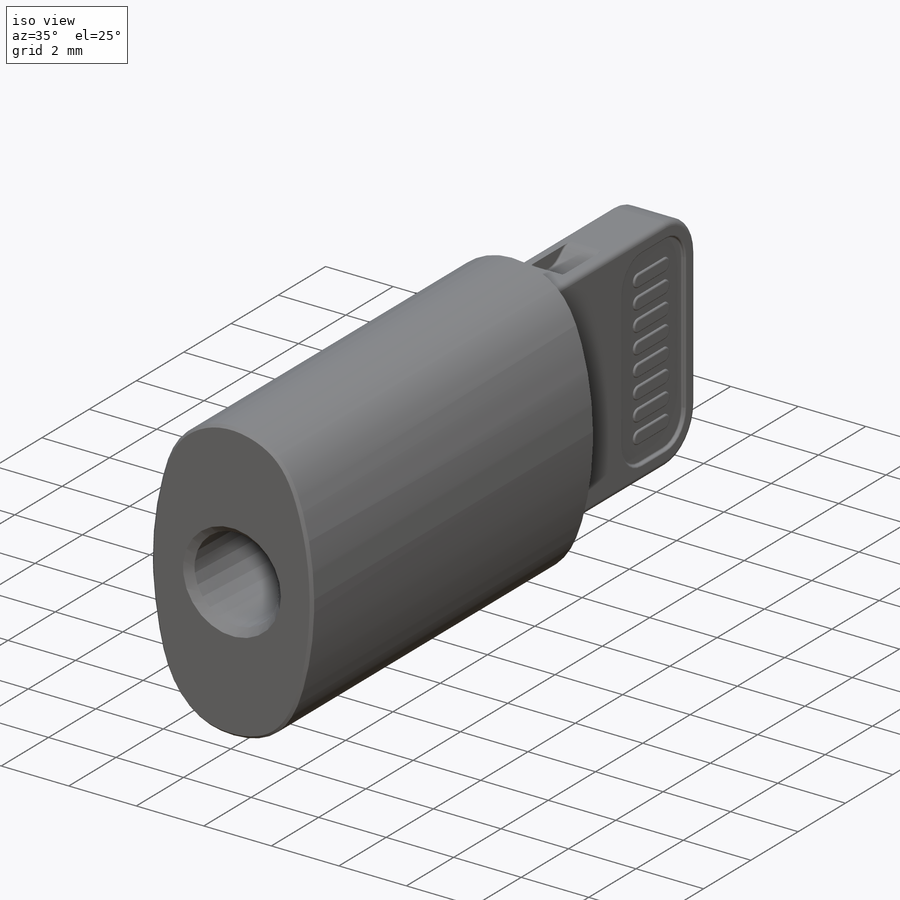
[diagram: iso view]
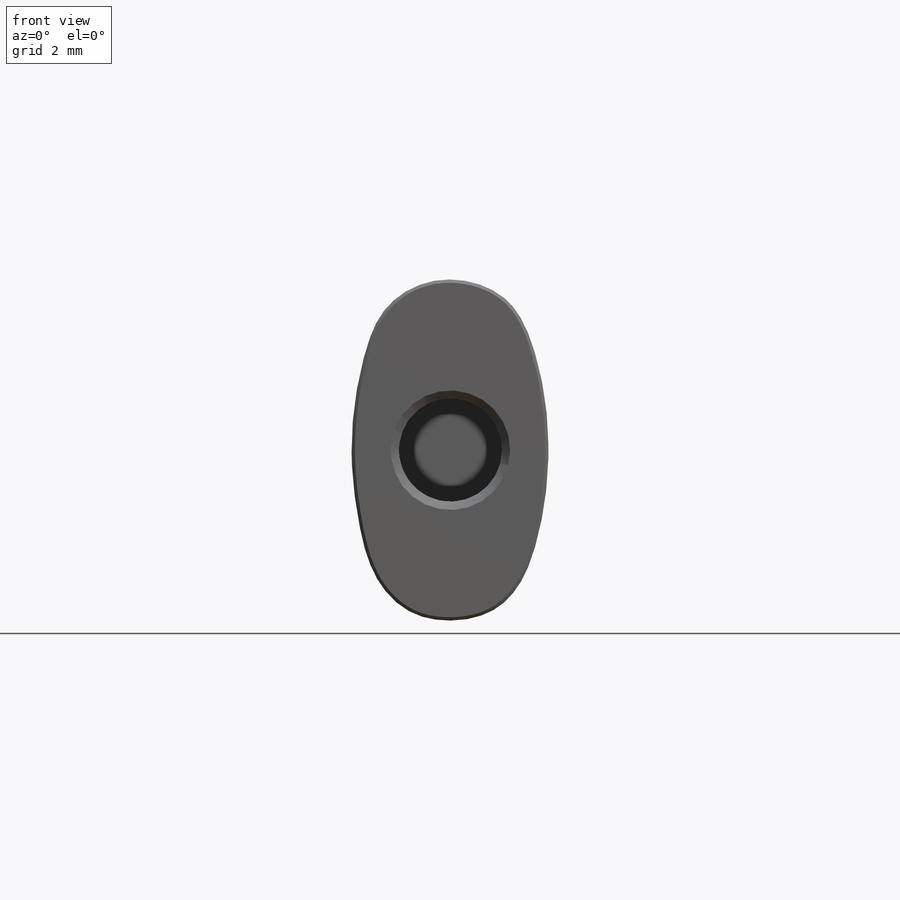
[diagram: front view]
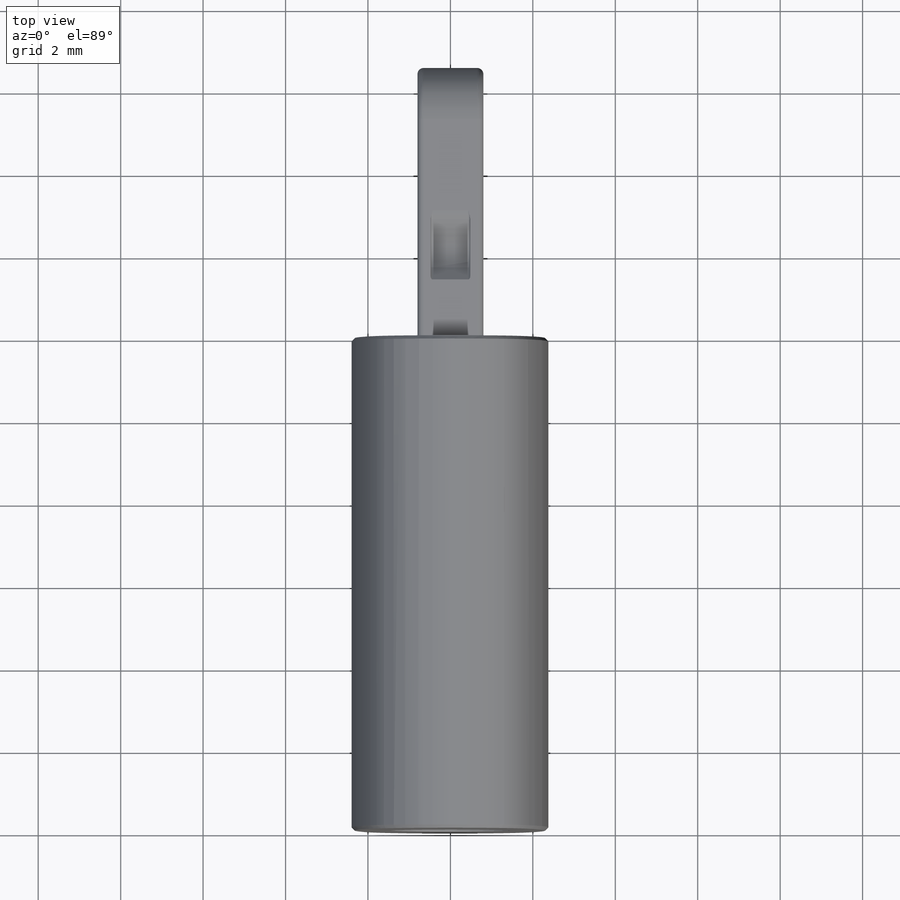
[diagram: top view]
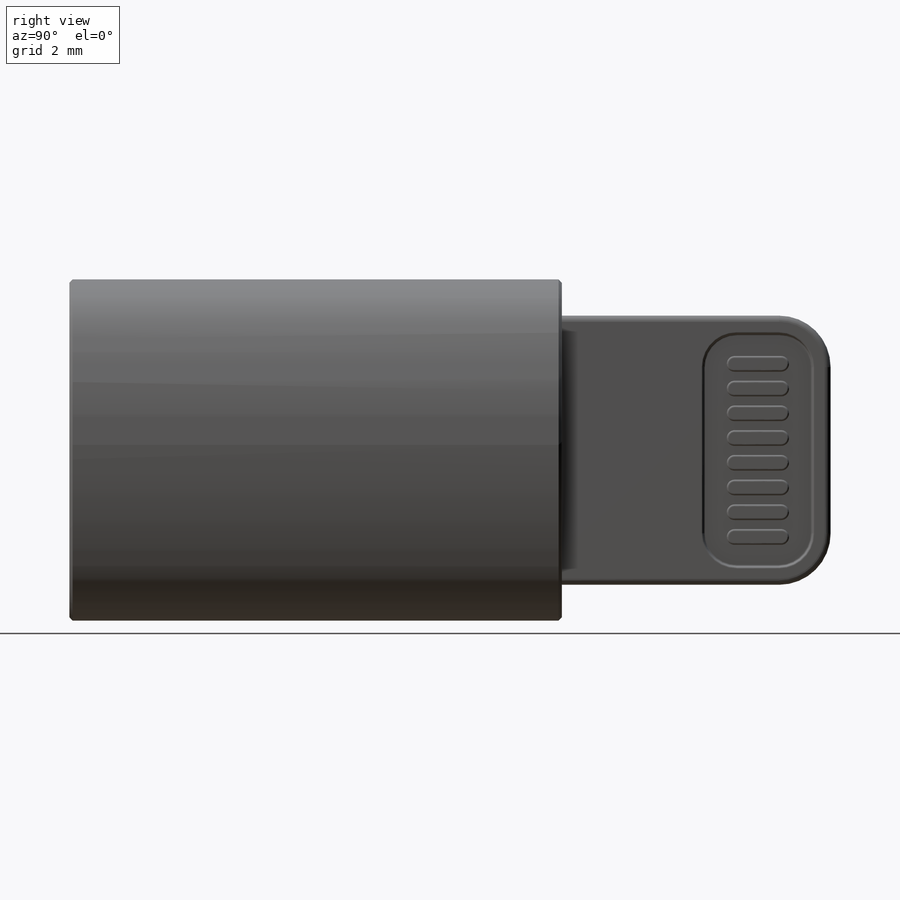
[diagram: right view]
SOLIDWORKS PART (.sldprt)
format: sldprt  version: not decoded by parser v0  size: 1,001,472 bytes
history: native  units: mm
features: sketch x7, mirror x5, cut_extrude x4, plane x3, extrude x3, pattern_linear x3, chamfer x2, material x1, fillet x1 (+9 scaffold rows collapsed)
feature tree (38):
  scaffold x9  (default folders/planes/origin — collapsed)
  material  "Material <not specified>"
  plane  "Plano frontal"
  plane  "Plano superior"
  plane  "Plano direito"
  sketch  "Esboço1"  dims[D1=4.73mm D2=8.22mm]
  extrude  "Ressalto-extrusão1"  Depth=11.95mm
  sketch  "Esboço3"  dims[c1.D1=4.73mm c1.D2=8.22mm c2.D1=0.5mm c2.D2=0.55mm]
  cut_extrude  "Corte-extrusão1"  Depth=0.05mm
  sketch  "Esboço4"  dims[D1=2.5mm]
  cut_extrude  "Corte-extrusão2"  Depth=6mm
  chamfer  "Chanfro1"  Distance=0.08mm Angle=45deg
  chamfer  "Chanfro2"  Distance=0.2mm Angle=45deg
  sketch  "Esboço5"  dims[D1=6.53mm D2=1.6mm]
  extrude  "Ressalto-extrusão2"  Depth=6.52mm
  fillet  "Filete1"  Radius=1.25mm
  sketch  "Esboço6"  dims[D5=0.9mm D1=5.83mm D2=2.83mm D3=0.0mm D4=0.35mm D6=0.09mm]
  cut_extrude  "Corte-extrusão3"  Depth=0.1mm
  mirror  "Espelhar1"
  mirror  "Filete2"
  mirror  "Filete3"
  sketch  "Esboço7"  dims[D5=0.189mm D1=1.51mm D2=0.38mm D3=0.98mm D4=0.0mm]
  extrude  "Ressalto-extrusão3"  Depth=0.05mm
  mirror  "Filete4"
  pattern_linear  "Padrão linear1"  Count1=8 Count2=1 Spacing1=0.6mm Spacing2=10mm
  pattern_linear  "Espelhar2"  [2 undecoded]
  sketch  "Esboço8"  dims[D4=0.7mm D5=0.5mm D1=1.5mm D2=0.75mm D3=0.64mm]
  cut_extrude  "Corte-extrusão4"  Depth=0.96mm
  mirror  "Filete5"
  pattern_linear  "Espelhar3"  [2 undecoded]
decode coverage: 18 of 25 modeling features carry decoded parameters
note: 4 parameter values undecoded
note: suppression state not decoded; provenance and decode notes live in map.json
